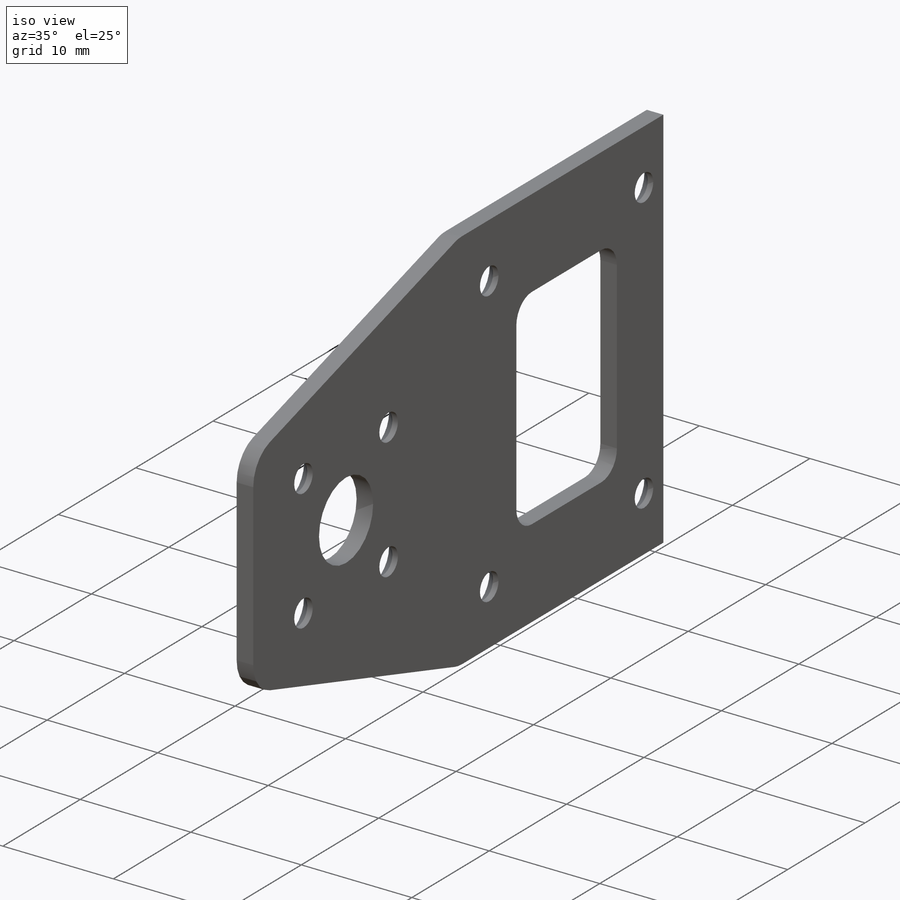
[diagram: iso view]
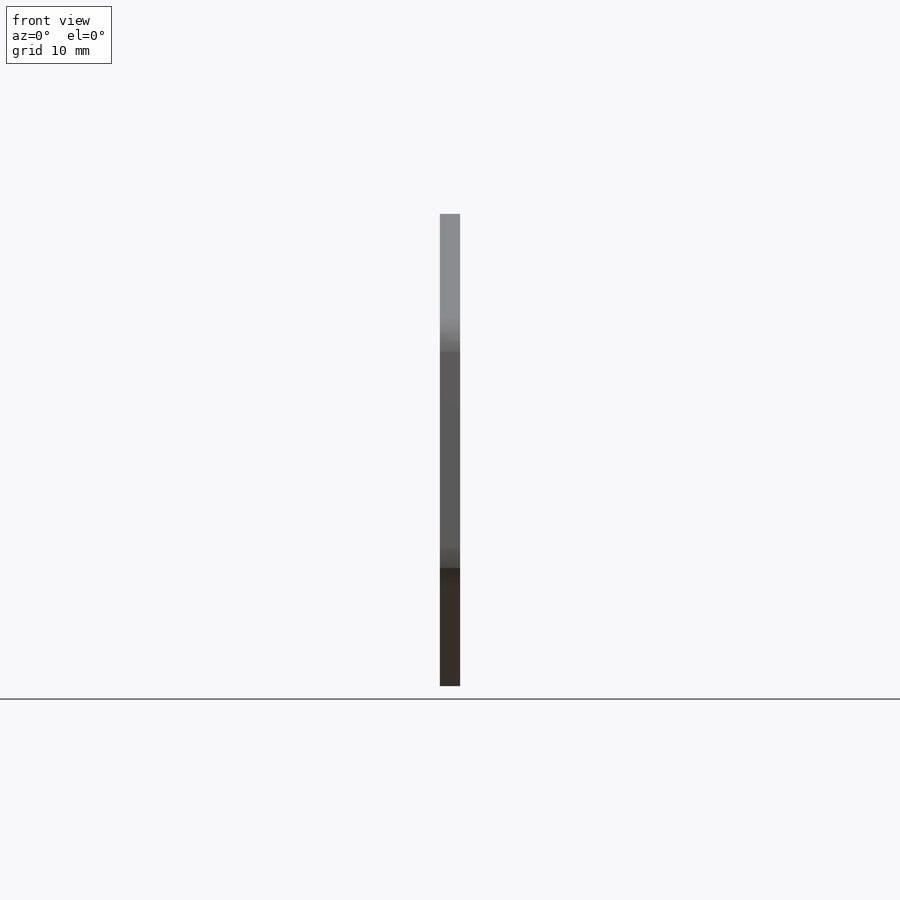
[diagram: front view]
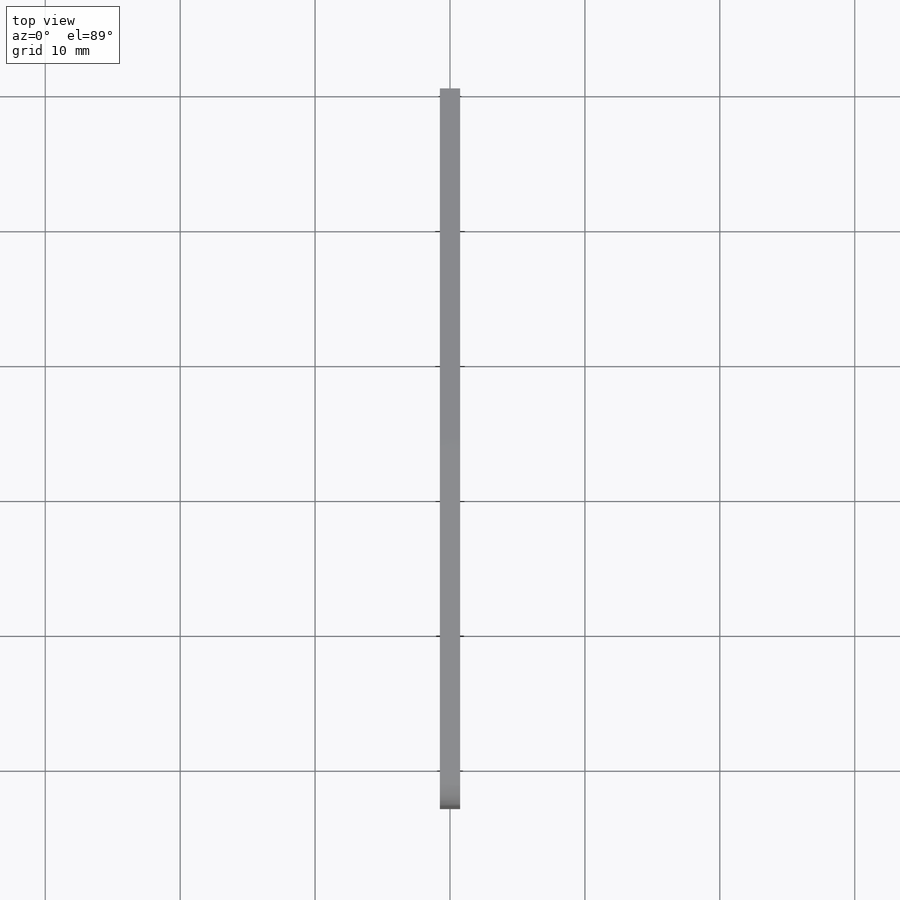
[diagram: top view]
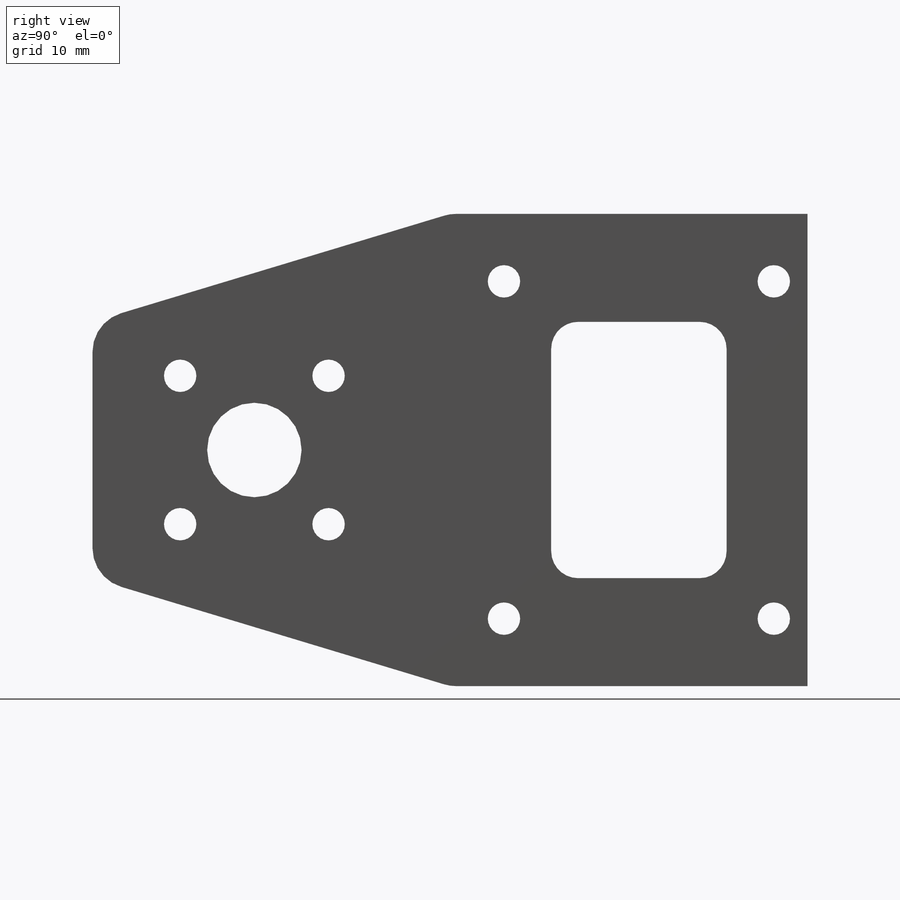
[diagram: right view]
SOLIDWORKS PART (.sldprt)
format: sldprt  version: not decoded by parser v0  size: 476,672 bytes
history: native  units: mm
features: sketch x14, cut_extrude x4, hole x4, extrude x2, material x1, fillet x1 (+12 scaffold rows collapsed)
feature tree (38):
  scaffold x12  (default folders/planes/origin — collapsed)
  material  "Hexcel AS4C (3000 Filaments)"
  sketch  "Sketch1"  dims[D1=35.0mm D2=1.5mm]
  extrude  "Boss-Extrude1"  Depth=53mm
  sketch  "Sketch2"  dims[D1=7.0mm D2=41.0mm]
  cut_extrude  "Cut-Extrude1"  [1 undecoded]
  sketch  "Sketch4"  dims[c1.D1=15.0mm c1.D2=5.0mm c2.D1=22.5mm c2.D2=23.5mm]
  extrude  "Boss-Extrude2"  [1 undecoded]
  hole  "M2 Clearance Hole1"  Diameter=2.4mm Depth=6mm
  sketch  "Sketch6"  dims[D1=20.0mm D2=2.5mm D3=25.0mm]
  sketch  "Sketch5"  dims[hole-wizard template sketch: 47 standard entries collapsed; hole parameters kept: c15.Hole Depth=6.0mm c15.D3=~14.816244mm c15.Drill Angle=118.0deg]
  hole  "CSK for M2 Countersunk Flat Head Screw1"  Diameter=2.4mm Depth=1.50005mm
  sketch  "Sketch8"
  sketch  "Sketch7"  dims[hole-wizard template sketch: 55 standard entries collapsed; hole parameters kept: c17.Thru Hole Depth=~1.50005mm c17.Near C'Sink Dia.=4.4mm c17.D4=~3.666174mm c17.Near C'Sink Angle=90.0deg]
  hole  "CSK for M2 Countersunk Flat Head Screw2"  Diameter=2.4mm Depth=1.50005mm
  sketch  "Sketch10"  dims[D1=8.0mm D2=11.0mm]
  sketch  "Sketch9"  dims[hole-wizard template sketch: 55 standard entries collapsed; hole parameters kept: c17.Thru Hole Depth=~1.50005mm c17.Near C'Sink Dia.=4.4mm c17.D4=~3.666174mm c17.Near C'Sink Angle=90.0deg]
  sketch  "Sketch11"
  cut_extrude  "Cut-Extrude2"  Depth=10mm
  hole  "M3 Clearance Hole1"  Diameter=3.4mm Depth=64mm
  sketch  "Sketch13"
  sketch  "Sketch12"  dims[hole-wizard template sketch: 47 standard entries collapsed; hole parameters kept: c15.Hole Depth=64.0mm c15.D3=~14.816244mm c15.Drill Angle=118.0deg]
  sketch  "Sketch14"  dims[D3=2.0mm D1=8.0mm D2=6.0mm]
  cut_extrude  "Cut-Extrude3"  Depth=10mm
  sketch  "Esquisse1"  dims[D1=26.5mm D2=8.0mm D3=26.5mm D4=8.0mm D5=19.0mm]
  cut_extrude  "Enlèv. mat.-Extru.1"  Depth=10mm
  fillet  "Congé1"  Radius=3mm
decode coverage: 20 of 25 modeling features carry decoded parameters
note: ~ marks probable driven/reference dimensions
note: 2 parameter values undecoded
summary: Diameter pulled from absorbed wizard sketch
note: suppression state not decoded; provenance and decode notes live in map.json
